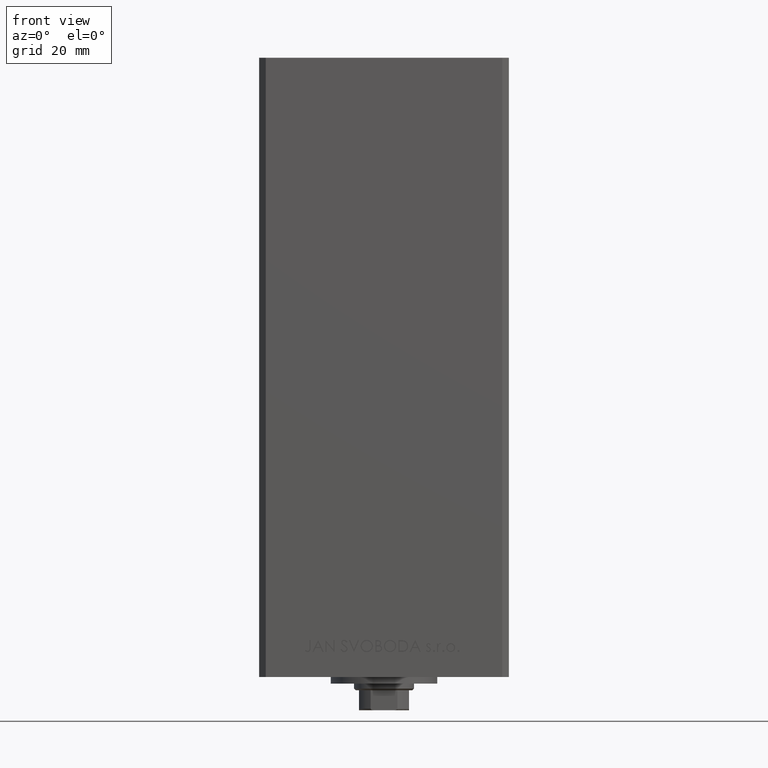
[diagram: clean part render]
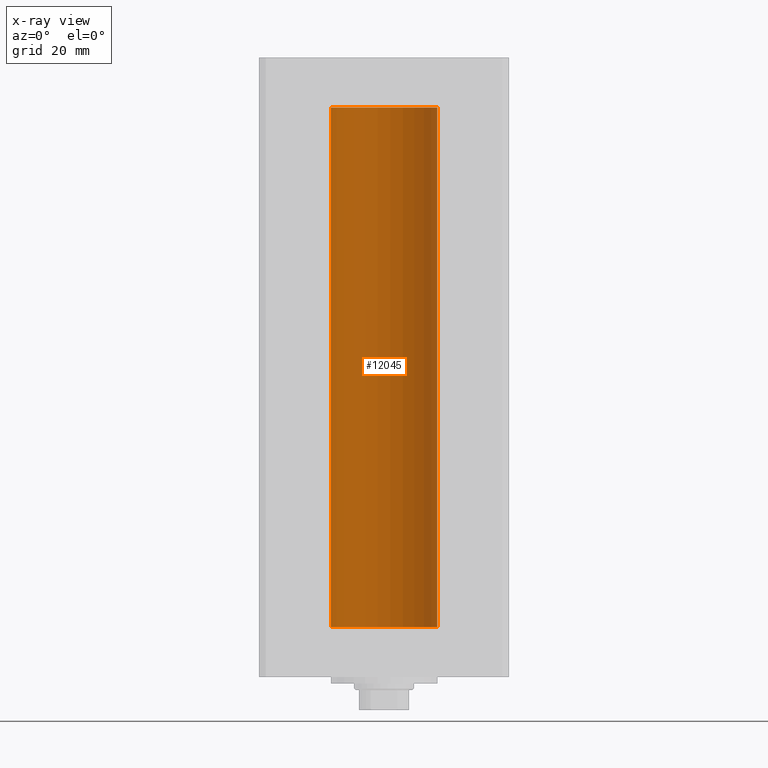
[diagram: x-ray — body ghosted, one internal face saturated and labeled with its STEP entity id]
A machine part, front view, then the same camera in x-ray: the body is ghosted and one INTERNAL B-rep face — a face not visible from any outside direction — is saturated and labeled: STEP entity #12045.
In plain terms, the highlighted cylindrical surface (partial cylindrical patch) has radius 16 mm, axis along (-0, -0, -1).
Its self-contained STEP definition (entity closure, byte-faithful):
#791 = DIRECTION ( 'NONE',  ( 1.000000000000000000, 0.000000000000000000, 0.000000000000000000 ) ) ;
#803 = LINE ( 'NONE', #31222, #39313 ) ;
#919 = CARTESIAN_POINT ( 'NONE',  ( 0.000000000000000000, 0.000000000000000000, 156.0000000000000000 ) ) ;
#4574 = CIRCLE ( 'NONE', #32222, 16.00000000000000000 ) ;
#6683 = CARTESIAN_POINT ( 'NONE',  ( 0.000000000000000000, 0.000000000000000000, 156.0000000000000000 ) ) ;
#10527 = CARTESIAN_POINT ( 'NONE',  ( 16.00000000000000000, 1.959434878635765131E-15, 0.000000000000000000 ) ) ;
#11795 = CARTESIAN_POINT ( 'NONE',  ( -16.00000000000000000, 0.000000000000000000, 156.0000000000000000 ) ) ;
#12045 = ADVANCED_FACE ( 'NONE', ( #33175 ), #18784, .F. ) ;
#12598 = CIRCLE ( 'NONE', #12628, 16.00000000000000000 ) ;
#12628 = AXIS2_PLACEMENT_3D ( 'NONE', #15140, #45327, #791 ) ;
#12656 = VERTEX_POINT ( 'NONE', #39900 ) ;
#13915 = VECTOR ( 'NONE', #41980, 1000.000000000000000 ) ;
#14467 = EDGE_CURVE ( 'NONE', #29907, #12656, #4574, .T. ) ;
#15140 = CARTESIAN_POINT ( 'NONE',  ( 0.000000000000000000, 0.000000000000000000, 0.000000000000000000 ) ) ;
#15786 = ORIENTED_EDGE ( 'NONE', *, *, #14467, .T. ) ;
#16003 = DIRECTION ( 'NONE',  ( -0.000000000000000000, 0.000000000000000000, 1.000000000000000000 ) ) ;
#16851 = DIRECTION ( 'NONE',  ( -0.000000000000000000, -0.000000000000000000, -1.000000000000000000 ) ) ;
#18784 = CYLINDRICAL_SURFACE ( 'NONE', #27520, 16.00000000000000000 ) ;
#19130 = EDGE_CURVE ( 'NONE', #46536, #42104, #12598, .T. ) ;
#25725 = DIRECTION ( 'NONE',  ( -1.000000000000000000, 0.000000000000000000, 0.000000000000000000 ) ) ;
#27520 = AXIS2_PLACEMENT_3D ( 'NONE', #6683, #40581, #25725 ) ;
#28081 = CARTESIAN_POINT ( 'NONE',  ( -16.00000000000000000, 0.000000000000000000, 0.000000000000000000 ) ) ;
#29035 = EDGE_LOOP ( 'NONE', ( #46136, #15786, #41442, #30897 ) ) ;
#29907 = VERTEX_POINT ( 'NONE', #43391 ) ;
#30126 = LINE ( 'NONE', #11795, #13915 ) ;
#30897 = ORIENTED_EDGE ( 'NONE', *, *, #19130, .F. ) ;
#31102 = DIRECTION ( 'NONE',  ( 1.000000000000000000, 0.000000000000000000, 0.000000000000000000 ) ) ;
#31222 = CARTESIAN_POINT ( 'NONE',  ( 16.00000000000000000, 1.959434878635765131E-15, 156.0000000000000000 ) ) ;
#32222 = AXIS2_PLACEMENT_3D ( 'NONE', #919, #16003, #31102 ) ;
#33175 = FACE_OUTER_BOUND ( 'NONE', #29035, .T. ) ;
#39313 = VECTOR ( 'NONE', #16851, 1000.000000000000000 ) ;
#39900 = CARTESIAN_POINT ( 'NONE',  ( -16.00000000000000000, 0.000000000000000000, 156.0000000000000000 ) ) ;
#40581 = DIRECTION ( 'NONE',  ( -0.000000000000000000, -0.000000000000000000, -1.000000000000000000 ) ) ;
#41442 = ORIENTED_EDGE ( 'NONE', *, *, #43883, .T. ) ;
#41980 = DIRECTION ( 'NONE',  ( -0.000000000000000000, -0.000000000000000000, -1.000000000000000000 ) ) ;
#42104 = VERTEX_POINT ( 'NONE', #28081 ) ;
#43391 = CARTESIAN_POINT ( 'NONE',  ( 16.00000000000000000, 1.959434878635765131E-15, 156.0000000000000000 ) ) ;
#43883 = EDGE_CURVE ( 'NONE', #12656, #42104, #30126, .T. ) ;
#45327 = DIRECTION ( 'NONE',  ( -0.000000000000000000, 0.000000000000000000, 1.000000000000000000 ) ) ;
#46136 = ORIENTED_EDGE ( 'NONE', *, *, #47836, .F. ) ;
#46536 = VERTEX_POINT ( 'NONE', #10527 ) ;
#47836 = EDGE_CURVE ( 'NONE', #29907, #46536, #803, .T. ) ;